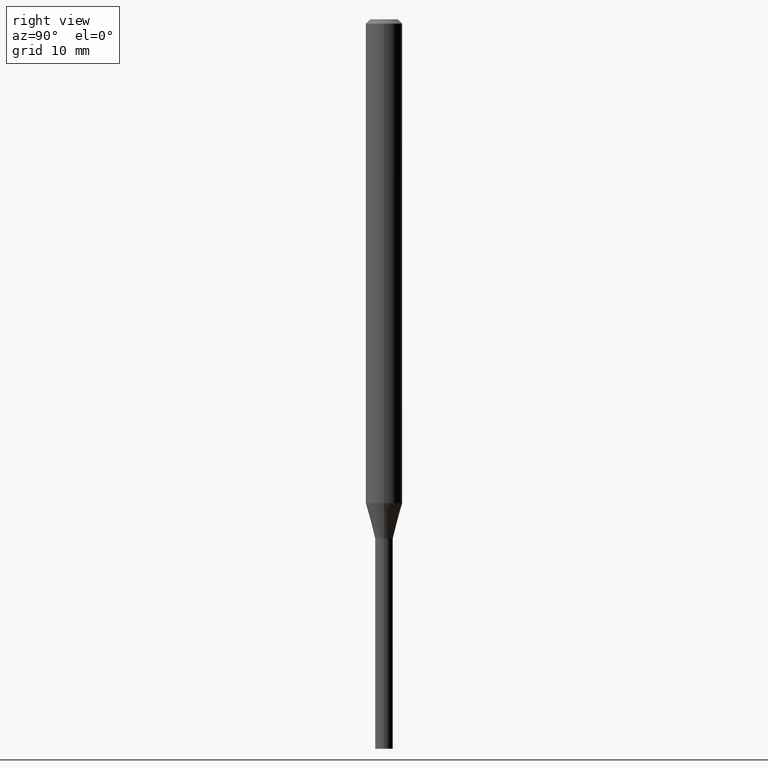
[diagram: clean part render]
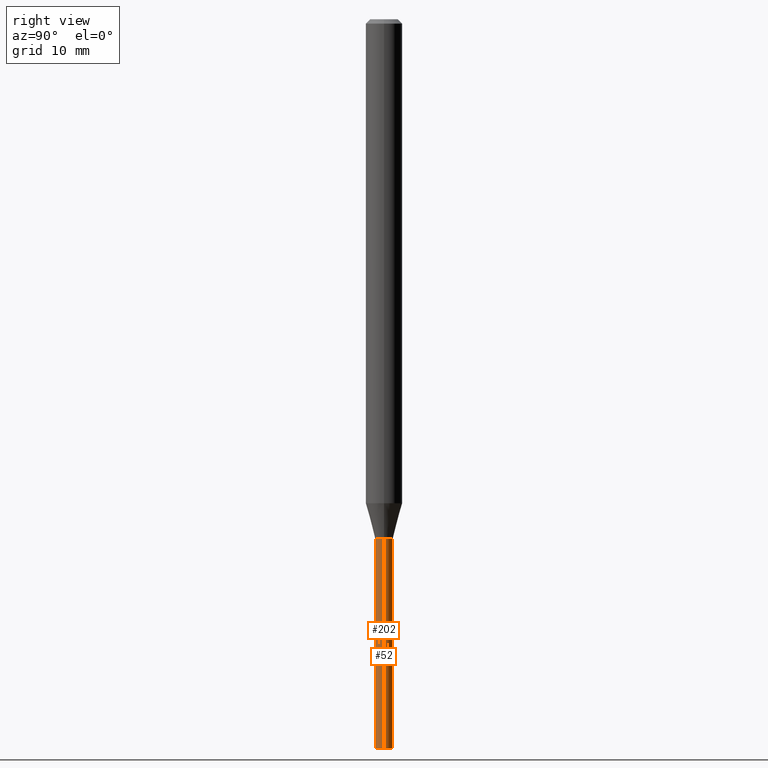
[diagram: same view with one multi-face feature highlighted, each face labeled with its STEP entity id]
A machine part, right view. The highlighted faces form ONE feature: a constant-radius fillet chain: 2 tangent blend faces with common blend radius 0.762 mm. The faces share edges in the B-rep.
Their STEP definitions:
[1] entity #52 (Cylinder):
#5 = CIRCLE ( 'NONE', #56, 0.02999999999999999889 ) ;
#8 = CYLINDRICAL_SURFACE ( 'NONE', #297, 0.02999999999999999889 ) ;
#13 = LINE ( 'NONE', #372, #447 ) ;
#21 = CARTESIAN_POINT ( 'NONE',  ( -0.02999999999999999889, -7.258607244396301641E-15, -2.500000000000000000 ) ) ;
#28 = VERTEX_POINT ( 'NONE', #257 ) ;
#35 = ORIENTED_EDGE ( 'NONE', *, *, #212, .F. ) ;
#47 = DIRECTION ( 'NONE',  ( -2.445468806185136597E-29, 3.491481338843145583E-15, 1.000000000000000000 ) ) ;
#52 = ADVANCED_FACE ( 'NONE', ( #117 ), #8, .T. ) ;
#56 = AXIS2_PLACEMENT_3D ( 'NONE', #312, #172, #240 ) ;
#61 = DIRECTION ( 'NONE',  ( -2.445468806185136877E-29, 3.491481338843145188E-15, 1.000000000000000000 ) ) ;
#99 = CARTESIAN_POINT ( 'NONE',  ( -0.02999999999999999889, 2.131628207280300479E-16, -1.475680527076471707E-30 ) ) ;
#102 = LINE ( 'NONE', #99, #127 ) ;
#105 = DIRECTION ( 'NONE',  ( -2.445468806185136877E-29, 3.491481338843145188E-15, 1.000000000000000000 ) ) ;
#117 = FACE_OUTER_BOUND ( 'NONE', #226, .T. ) ;
#127 = VECTOR ( 'NONE', #105, 39.37007874015748143 ) ;
#135 = CARTESIAN_POINT ( 'NONE',  ( 0.02999999999999999889, -6.424325663471387146E-15, -1.780000000000000027 ) ) ;
#150 = CIRCLE ( 'NONE', #199, 0.02999999999999999889 ) ;
#172 = DIRECTION ( 'NONE',  ( -2.445468806185136597E-29, 3.491481338843145583E-15, 1.000000000000000000 ) ) ;
#174 = CARTESIAN_POINT ( 'NONE',  ( -0.02999999999999999889, -7.258607244396301641E-15, -1.780000000000000027 ) ) ;
#199 = AXIS2_PLACEMENT_3D ( 'NONE', #331, #334, #265 ) ;
#212 = EDGE_CURVE ( 'NONE', #386, #310, #150, .T. ) ;
#214 = VERTEX_POINT ( 'NONE', #21 ) ;
#215 = CARTESIAN_POINT ( 'NONE',  ( 0.000000000000000000, 0.000000000000000000, 0.000000000000000000 ) ) ;
#219 = EDGE_CURVE ( 'NONE', #28, #386, #13, .T. ) ;
#226 = EDGE_LOOP ( 'NONE', ( #367, #313, #35, #452 ) ) ;
#240 = DIRECTION ( 'NONE',  ( 1.000000000000000000, -6.982962677686236734E-15, 0.000000000000000000 ) ) ;
#255 = DIRECTION ( 'NONE',  ( 1.000000000000000000, -6.982962677686267499E-15, 4.876176775795936353E-29 ) ) ;
#257 = CARTESIAN_POINT ( 'NONE',  ( 0.02999999999999999889, -8.938192227438451682E-15, -2.500000000000000000 ) ) ;
#265 = DIRECTION ( 'NONE',  ( 1.000000000000000000, -6.982962677686268288E-15, 0.000000000000000000 ) ) ;
#283 = EDGE_CURVE ( 'NONE', #28, #214, #5, .T. ) ;
#297 = AXIS2_PLACEMENT_3D ( 'NONE', #215, #47, #255 ) ;
#310 = VERTEX_POINT ( 'NONE', #174 ) ;
#312 = CARTESIAN_POINT ( 'NONE',  ( 6.113672015462842613E-29, -8.728703347107864943E-15, -2.500000000000000000 ) ) ;
#313 = ORIENTED_EDGE ( 'NONE', *, *, #322, .T. ) ;
#322 = EDGE_CURVE ( 'NONE', #214, #310, #102, .T. ) ;
#331 = CARTESIAN_POINT ( 'NONE',  ( 4.352934475009543120E-29, -6.214836783140799618E-15, -1.780000000000000027 ) ) ;
#334 = DIRECTION ( 'NONE',  ( -2.445468806185136597E-29, 3.491481338843145583E-15, 1.000000000000000000 ) ) ;
#367 = ORIENTED_EDGE ( 'NONE', *, *, #283, .T. ) ;
#372 = CARTESIAN_POINT ( 'NONE',  ( 0.02999999999999999889, -2.094888803305880210E-16, 1.462853032738780878E-30 ) ) ;
#386 = VERTEX_POINT ( 'NONE', #135 ) ;
#447 = VECTOR ( 'NONE', #61, 39.37007874015748143 ) ;
#452 = ORIENTED_EDGE ( 'NONE', *, *, #219, .F. ) ;
[2] entity #202 (Cylinder):
#2 = EDGE_CURVE ( 'NONE', #214, #28, #339, .T. ) ;
#3 = DIRECTION ( 'NONE',  ( 1.000000000000000000, -6.982962677686236734E-15, 0.000000000000000000 ) ) ;
#13 = LINE ( 'NONE', #372, #447 ) ;
#21 = CARTESIAN_POINT ( 'NONE',  ( -0.02999999999999999889, -7.258607244396301641E-15, -2.500000000000000000 ) ) ;
#28 = VERTEX_POINT ( 'NONE', #257 ) ;
#37 = ORIENTED_EDGE ( 'NONE', *, *, #322, .F. ) ;
#61 = DIRECTION ( 'NONE',  ( -2.445468806185136877E-29, 3.491481338843145188E-15, 1.000000000000000000 ) ) ;
#78 = CARTESIAN_POINT ( 'NONE',  ( 6.113672015462842613E-29, -8.728703347107864943E-15, -2.500000000000000000 ) ) ;
#89 = EDGE_CURVE ( 'NONE', #310, #386, #156, .T. ) ;
#99 = CARTESIAN_POINT ( 'NONE',  ( -0.02999999999999999889, 2.131628207280300479E-16, -1.475680527076471707E-30 ) ) ;
#102 = LINE ( 'NONE', #99, #127 ) ;
#105 = DIRECTION ( 'NONE',  ( -2.445468806185136877E-29, 3.491481338843145188E-15, 1.000000000000000000 ) ) ;
#108 = EDGE_LOOP ( 'NONE', ( #37, #173, #364, #456 ) ) ;
#127 = VECTOR ( 'NONE', #105, 39.37007874015748143 ) ;
#135 = CARTESIAN_POINT ( 'NONE',  ( 0.02999999999999999889, -6.424325663471387146E-15, -1.780000000000000027 ) ) ;
#156 = CIRCLE ( 'NONE', #399, 0.02999999999999999889 ) ;
#173 = ORIENTED_EDGE ( 'NONE', *, *, #2, .T. ) ;
#174 = CARTESIAN_POINT ( 'NONE',  ( -0.02999999999999999889, -7.258607244396301641E-15, -1.780000000000000027 ) ) ;
#191 = DIRECTION ( 'NONE',  ( -2.445468806185136597E-29, 3.491481338843145583E-15, 1.000000000000000000 ) ) ;
#192 = AXIS2_PLACEMENT_3D ( 'NONE', #261, #373, #338 ) ;
#193 = CARTESIAN_POINT ( 'NONE',  ( 4.352934475009543120E-29, -6.214836783140799618E-15, -1.780000000000000027 ) ) ;
#197 = CYLINDRICAL_SURFACE ( 'NONE', #192, 0.02999999999999999889 ) ;
#202 = ADVANCED_FACE ( 'NONE', ( #269 ), #197, .T. ) ;
#214 = VERTEX_POINT ( 'NONE', #21 ) ;
#219 = EDGE_CURVE ( 'NONE', #28, #386, #13, .T. ) ;
#257 = CARTESIAN_POINT ( 'NONE',  ( 0.02999999999999999889, -8.938192227438451682E-15, -2.500000000000000000 ) ) ;
#261 = CARTESIAN_POINT ( 'NONE',  ( 0.000000000000000000, 0.000000000000000000, 0.000000000000000000 ) ) ;
#269 = FACE_OUTER_BOUND ( 'NONE', #108, .T. ) ;
#300 = DIRECTION ( 'NONE',  ( 1.000000000000000000, -6.982962677686268288E-15, 0.000000000000000000 ) ) ;
#310 = VERTEX_POINT ( 'NONE', #174 ) ;
#321 = DIRECTION ( 'NONE',  ( -2.445468806185136597E-29, 3.491481338843145583E-15, 1.000000000000000000 ) ) ;
#322 = EDGE_CURVE ( 'NONE', #214, #310, #102, .T. ) ;
#338 = DIRECTION ( 'NONE',  ( 1.000000000000000000, -6.982962677686267499E-15, 4.876176775795936353E-29 ) ) ;
#339 = CIRCLE ( 'NONE', #348, 0.02999999999999999889 ) ;
#348 = AXIS2_PLACEMENT_3D ( 'NONE', #78, #321, #3 ) ;
#364 = ORIENTED_EDGE ( 'NONE', *, *, #219, .T. ) ;
#372 = CARTESIAN_POINT ( 'NONE',  ( 0.02999999999999999889, -2.094888803305880210E-16, 1.462853032738780878E-30 ) ) ;
#373 = DIRECTION ( 'NONE',  ( -2.445468806185136597E-29, 3.491481338843145583E-15, 1.000000000000000000 ) ) ;
#386 = VERTEX_POINT ( 'NONE', #135 ) ;
#399 = AXIS2_PLACEMENT_3D ( 'NONE', #193, #191, #300 ) ;
#447 = VECTOR ( 'NONE', #61, 39.37007874015748143 ) ;
#456 = ORIENTED_EDGE ( 'NONE', *, *, #89, .F. ) ;